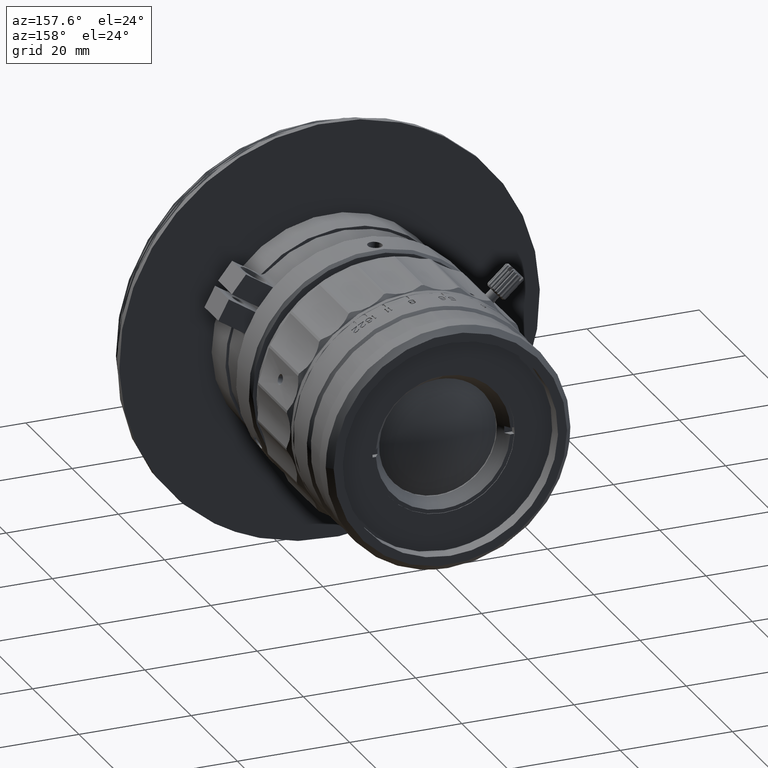
[diagram: clean part render]
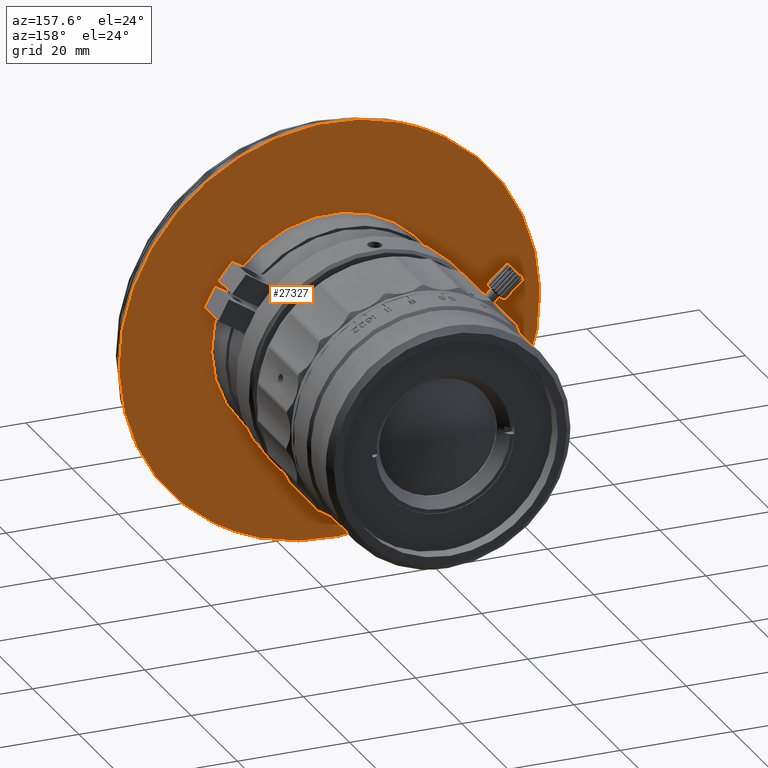
[diagram: same view with one face highlighted and labeled with its STEP entity id]
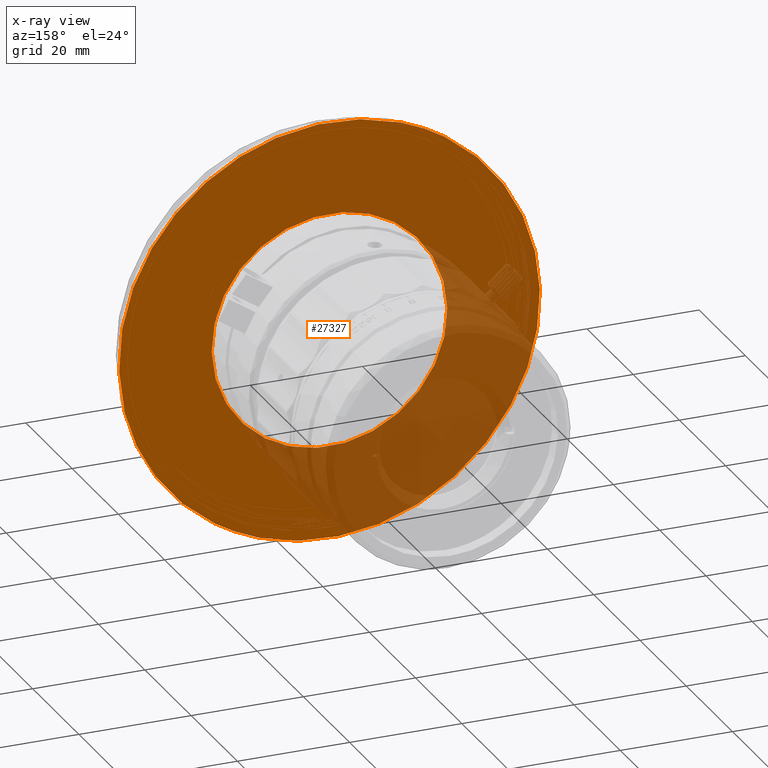
[diagram: x-ray of the same camera — body ghosted, the highlighted face saturated]
A machine part, auxiliary view. The second image highlights one B-rep face of the part: STEP entity #27327.
The next image is the same camera in x-ray: the body ghosted, the highlighted face saturated — about 29% of this face is hidden behind the body in this view.
In plain terms, the highlighted face is a freeform B-spline surface patch.
Its self-contained STEP definition (entity closure, byte-faithful):
#422 = CARTESIAN_POINT ( 'NONE',  ( 6.451661154938015841, 5.873262399999997996, 68.98731743393170746 ) ) ;
#1372 = CARTESIAN_POINT ( 'NONE',  ( -0.7499232027779262344, 5.873262400000004213, 64.93420997041066300 ) ) ;
#1745 = CARTESIAN_POINT ( 'NONE',  ( -7.471362569903750028, 5.873262399999999772, 80.25220015255040096 ) ) ;
#2824 = CARTESIAN_POINT ( 'NONE',  ( -5.852262511655792920, 5.873262399999997108, 58.43369987024955492 ) ) ;
#2829 = VERTEX_POINT ( 'NONE', #37741 ) ;
#5951 = CARTESIAN_POINT ( 'NONE',  ( 28.82634968365321626, 5.873262400000000660, 34.73994840502086134 ) ) ;
#6684 = CARTESIAN_POINT ( 'NONE',  ( 3.856354639901823589, 5.873262399999998884, 67.94360992770458552 ) ) ;
#7388 = EDGE_CURVE ( 'NONE', #60336, #33852, #9946, .T. ) ;
#9946 =( BOUNDED_CURVE ( )  B_SPLINE_CURVE ( 3, ( #72647, #72288, #21683, #67085, #44223, #66723, #10959 ),
 .UNSPECIFIED., .F., .F. ) 
 B_SPLINE_CURVE_WITH_KNOTS ( ( 4, 3, 4 ),
 ( -3.141592653589795336, -1.570796326794897668, 0.0000000000000000000 ),
 .UNSPECIFIED. ) 
 CURVE ( )  GEOMETRIC_REPRESENTATION_ITEM ( )  RATIONAL_B_SPLINE_CURVE ( ( 1.000000000000000000, 0.8047378540760217192, 0.8047378540760217192, 1.000000000000000000, 0.8047378540760217192, 0.8047378540760217192, 1.000000000000000000 ) ) 
 REPRESENTATION_ITEM ( '' )  );
#9965 = EDGE_CURVE ( 'NONE', #2829, #68236, #52537, .T. ) ;
#10959 = CARTESIAN_POINT ( 'NONE',  ( -7.471362569903750028, 5.873262399999999772, 80.25220015255040096 ) ) ;
#11488 = CARTESIAN_POINT ( 'NONE',  ( 33.02749392297319275, 5.873262400000001549, 41.85618923569172267 ) ) ;
#11665 = CARTESIAN_POINT ( 'NONE',  ( 1.553215716046189909, 5.873262399999999772, 66.43890994121150584 ) ) ;
#12218 = CARTESIAN_POINT ( 'NONE',  ( 11.85895471831561387, 5.873262400000000660, 70.00489426969382123 ) ) ;
#13006 = ORIENTED_EDGE ( 'NONE', *, *, #36580, .T. ) ;
#13397 = CARTESIAN_POINT ( 'NONE',  ( -70.25904534801924228, 5.873262399999999772, 39.23138975702437392 ) ) ;
#14557 = ORIENTED_EDGE ( 'NONE', *, *, #7388, .F. ) ;
#14626 = CARTESIAN_POINT ( 'NONE',  ( 14.21913054868438664, 5.873262399999999772, 27.71182323330617692 ) ) ;
#15635 = CARTESIAN_POINT ( 'NONE',  ( 33.54944782577244666, 5.873262399999999772, 17.46451734294619840 ) ) ;
#17868 = EDGE_CURVE ( 'NONE', #33852, #60336, #51707, .T. ) ;
#18338 = CARTESIAN_POINT ( 'NONE',  ( -1.079367712979072857, 5.873262399999999772, 33.07105170134676797 ) ) ;
#18490 = CARTESIAN_POINT ( 'NONE',  ( 31.93034777865578278, 5.873262399999998884, 39.28301763275044323 ) ) ;
#21683 = CARTESIAN_POINT ( 'NONE',  ( 56.44760124173978966, 5.873262399999999772, 50.97867743075306635 ) ) ;
#23043 = EDGE_LOOP ( 'NONE', ( #59214, #14557 ) ) ;
#23289 = CARTESIAN_POINT ( 'NONE',  ( 26.82800846977792375, 5.873262400000000660, 32.78250753258936356 ) ) ;
#25319 = CARTESIAN_POINT ( 'NONE',  ( -8.078572108606225655, 5.873262399999998884, 50.47543095325278273 ) ) ;
#27327 = ADVANCED_FACE ( 'NONE', ( #65064, #48828 ), #44949, .F. ) ;
#28828 = CARTESIAN_POINT ( 'NONE',  ( 32.12429380970459647, 5.873262400000000660, 58.04104674509818551 ) ) ;
#29198 = CARTESIAN_POINT ( 'NONE',  ( 34.18557815169381087, 5.873262400000000660, 50.03844666668441477 ) ) ;
#33852 = VERTEX_POINT ( 'NONE', #1745 ) ;
#33971 = EDGE_LOOP ( 'NONE', ( #42487, #13006 ) ) ;
#34753 = CARTESIAN_POINT ( 'NONE',  ( 33.16800131593175394, 5.873262400000002437, 55.44574023006198615 ) ) ;
#36434 = CARTESIAN_POINT ( 'NONE',  ( -2.748264416653202868, 5.873262400000004213, 62.97676909797915101 ) ) ;
#36580 = EDGE_CURVE ( 'NONE', #68236, #2829, #59105, .T. ) ;
#37741 = CARTESIAN_POINT ( 'NONE',  ( 24.52486954442695222, 5.873262399999999772, 31.27780755729324369 ) ) ;
#37884 = CARTESIAN_POINT ( 'NONE',  ( 22.22173062709817515, 5.873262400000000660, 29.77310757529540552 ) ) ;
#40663 = CARTESIAN_POINT ( 'NONE',  ( 20.04121214930827932, 5.873262399999999772, 68.84681004097318180 ) ) ;
#40738 = CARTESIAN_POINT ( 'NONE',  ( -29.23823496897296437, 5.873262399999999772, -23.55629302521380097 ) ) ;
#40880 = CARTESIAN_POINT ( 'NONE',  ( 3.463701514750365362, 5.873262399999998884, 29.96705360634424409 ) ) ;
#41034 = CARTESIAN_POINT ( 'NONE',  ( 27.15745297997908381, 5.873262400000000660, 64.64566580165326570 ) ) ;
#41254 = CARTESIAN_POINT ( 'NONE',  ( -6.949408655973178028, 5.873262399999998884, 55.86052826730826837 ) ) ;
#41471 = CARTESIAN_POINT ( 'NONE',  ( -7.471362569903750028, 5.873262399999999772, 80.25220015255040096 ) ) ;
#41834 = CARTESIAN_POINT ( 'NONE',  ( 33.54944782577244666, 5.873262399999999772, 17.46451734294619840 ) ) ;
#42487 = ORIENTED_EDGE ( 'NONE', *, *, #9965, .T. ) ;
#42929 = CARTESIAN_POINT ( 'NONE',  ( 2.025005183999999847, 5.873262399999999772, -3.668738818000000013 ) ) ;
#44223 = CARTESIAN_POINT ( 'NONE',  ( 32.41816683984672665, 5.873262399999999772, 87.75885048012489165 ) ) ;
#44949 = B_SPLINE_SURFACE_WITH_KNOTS ( 'NONE', 1, 1, ( 
 ( #69880, #70243 ),
 ( #42929, #53619 ) ),
 .UNSPECIFIED., .F., .F., .F.,
 ( 2, 2 ),
 ( 2, 2 ),
 ( 0.0000000000000000000, 1.000000000000000000 ),
 ( 0.0000000000000000000, 1.000000000000000000 ),
 .UNSPECIFIED. ) ;
#46412 = CARTESIAN_POINT ( 'NONE',  ( -8.107492884693822788, 5.873262400000000660, 47.67827083631559049 ) ) ;
#47869 = CARTESIAN_POINT ( 'NONE',  ( -6.046208542704596844, 5.873262400000000660, 39.67567075790180553 ) ) ;
#48828 = FACE_OUTER_BOUND ( 'NONE', #23043, .T. ) ;
#51003 = CARTESIAN_POINT ( 'NONE',  ( 1.553215716046189909, 5.873262399999999772, 66.43890994121150584 ) ) ;
#51707 =( BOUNDED_CURVE ( )  B_SPLINE_CURVE ( 3, ( #41471, #13397, #40738, #41834 ),
 .UNSPECIFIED., .F., .F. ) 
 B_SPLINE_CURVE_WITH_KNOTS ( ( 4, 4 ),
 ( -3.141592653589795336, 0.0000000000000000000 ),
 .UNSPECIFIED. ) 
 CURVE ( )  GEOMETRIC_REPRESENTATION_ITEM ( )  RATIONAL_B_SPLINE_CURVE ( ( 1.000000000000000000, 0.3333333335299309419, 0.3333333335299309419, 1.000000000000000000 ) ) 
 REPRESENTATION_ITEM ( '' )  );
#52537 = B_SPLINE_CURVE_WITH_KNOTS ( 'NONE', 3,
 ( #62805, #23289, #5951, #18490, #11488, #57633, #29198, #34753, #28828, #68711, #41034, #57271, #40663, #63529, #12218, #422, #6684, #51003 ),
 .UNSPECIFIED., .F., .F.,
 ( 4, 2, 2, 2, 2, 2, 2, 2, 4 ),
 ( 0.0000000000000000000, 0.3926990816987242505, 0.7853981633974488341, 1.178097245096173529, 1.570796326794898112, 1.963495408493622030, 2.356194490192346613, 2.748893571891070753, 3.141592653589795336 ),
 .UNSPECIFIED. ) ;
#53619 = CARTESIAN_POINT ( 'NONE',  ( 65.56614020300000334, 5.873262399999999772, 37.84432130199999733 ) ) ;
#53756 = CARTESIAN_POINT ( 'NONE',  ( 24.52486954442695222, 5.873262399999999772, 31.27780755729324369 ) ) ;
#57271 = CARTESIAN_POINT ( 'NONE',  ( 22.61438375224962272, 5.873262399999999772, 67.74966389665574695 ) ) ;
#57633 = CARTESIAN_POINT ( 'NONE',  ( 34.15665737560622972, 5.873262400000001549, 47.24128654974720831 ) ) ;
#59105 = B_SPLINE_CURVE_WITH_KNOTS ( 'NONE', 3,
 ( #69288, #1372, #36434, #2824, #41254, #25319, #46412, #68923, #47869, #70379, #18338, #40880, #63382, #65568, #14626, #66287, #37884, #53756 ),
 .UNSPECIFIED., .F., .F.,
 ( 4, 2, 2, 2, 2, 2, 2, 2, 4 ),
 ( 0.0000000000000000000, 0.3926990816987251387, 0.7853981633974493892, 1.178097245096173529, 1.570796326794897668, 1.963495408493622030, 2.356194490192346613, 2.748893571891070753, 3.141592653589795336 ),
 .UNSPECIFIED. ) ;
#59214 = ORIENTED_EDGE ( 'NONE', *, *, #17868, .F. ) ;
#60336 = VERTEX_POINT ( 'NONE', #15635 ) ;
#62805 = CARTESIAN_POINT ( 'NONE',  ( 24.52486954442695222, 5.873262399999999772, 31.27780755729324369 ) ) ;
#63382 = CARTESIAN_POINT ( 'NONE',  ( 6.036873117691721191, 5.873262399999999772, 28.86990746202681635 ) ) ;
#63529 = CARTESIAN_POINT ( 'NONE',  ( 14.65611483525279723, 5.873262399999999772, 69.97597349360620456 ) ) ;
#65064 = FACE_BOUND ( 'NONE', #33971, .T. ) ;
#65568 = CARTESIAN_POINT ( 'NONE',  ( 11.42197043174719795, 5.873262399999998884, 27.74074400939377583 ) ) ;
#66287 = CARTESIAN_POINT ( 'NONE',  ( 19.62642411206199000, 5.873262399999999772, 28.72940006906825516 ) ) ;
#66723 = CARTESIAN_POINT ( 'NONE',  ( 10.91872394434370719, 5.873262399999999772, 92.26691735930494076 ) ) ;
#67085 = CARTESIAN_POINT ( 'NONE',  ( 44.43288404079325460, 5.873262399999999772, 69.36876395543897900 ) ) ;
#68236 = VERTEX_POINT ( 'NONE', #11665 ) ;
#68711 = CARTESIAN_POINT ( 'NONE',  ( 29.11489385241058869, 5.873262399999999772, 62.64732458777800872 ) ) ;
#68923 = CARTESIAN_POINT ( 'NONE',  ( -7.089916048931746317, 5.873262400000002437, 42.27097727293804041 ) ) ;
#69288 = CARTESIAN_POINT ( 'NONE',  ( 1.553215716046189909, 5.873262399999999772, 66.43890994121150584 ) ) ;
#69880 = CARTESIAN_POINT ( 'NONE',  ( -39.48805493600000460, 5.873262399999999772, 59.87239620099999371 ) ) ;
#70243 = CARTESIAN_POINT ( 'NONE',  ( 24.05308008300000111, 5.873262399999999772, 101.3854563209999924 ) ) ;
#70379 = CARTESIAN_POINT ( 'NONE',  ( -3.036808585410582850, 5.873262400000001549, 35.06939291522199653 ) ) ;
#72288 = CARTESIAN_POINT ( 'NONE',  ( 51.93953435815016206, 5.873262399999999772, 29.47923453617466194 ) ) ;
#72647 = CARTESIAN_POINT ( 'NONE',  ( 33.54944782577244666, 5.873262399999999772, 17.46451734294619840 ) ) ;